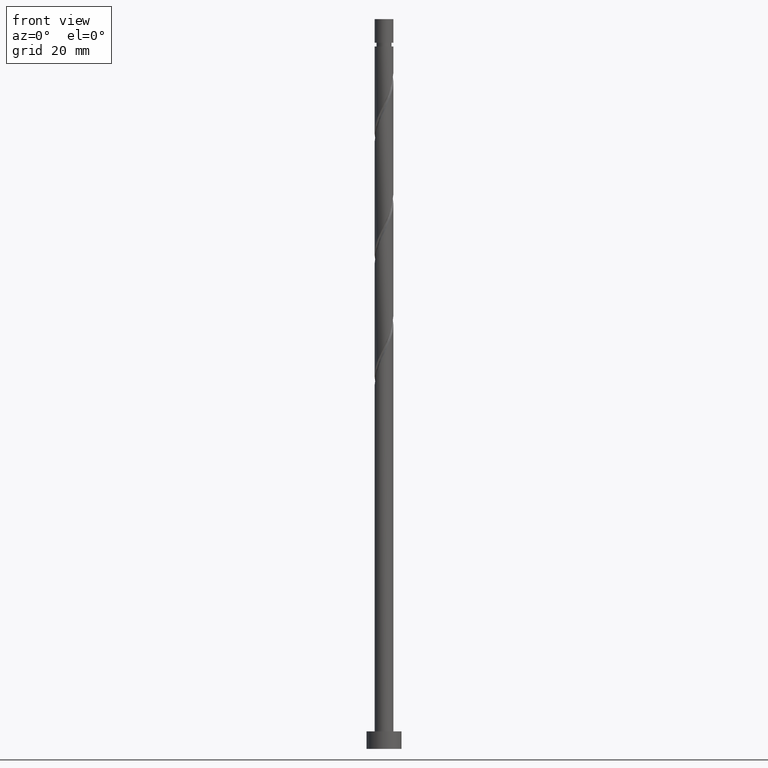
[diagram: clean part render]
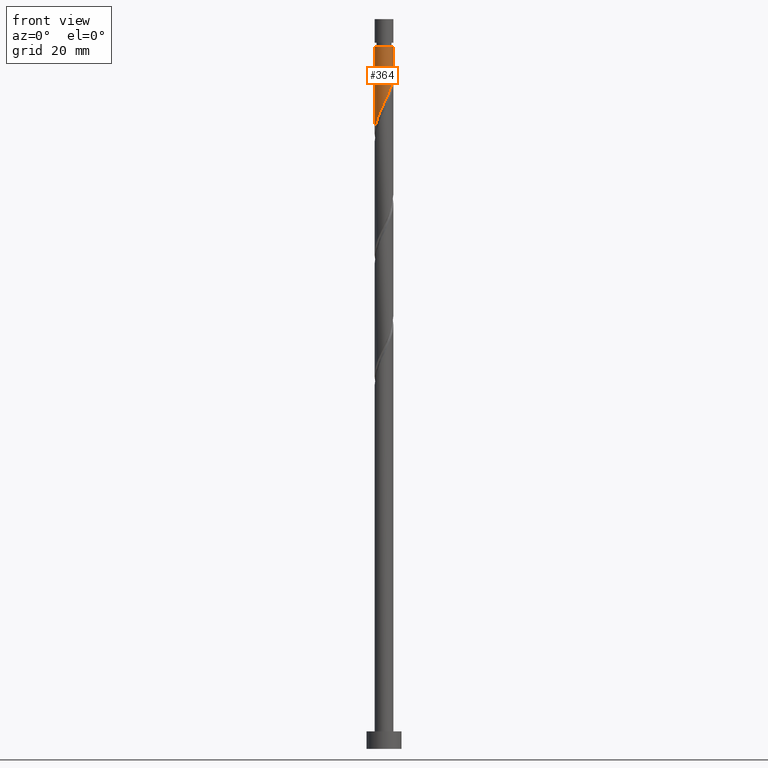
[diagram: same view with one face highlighted and labeled with its STEP entity id]
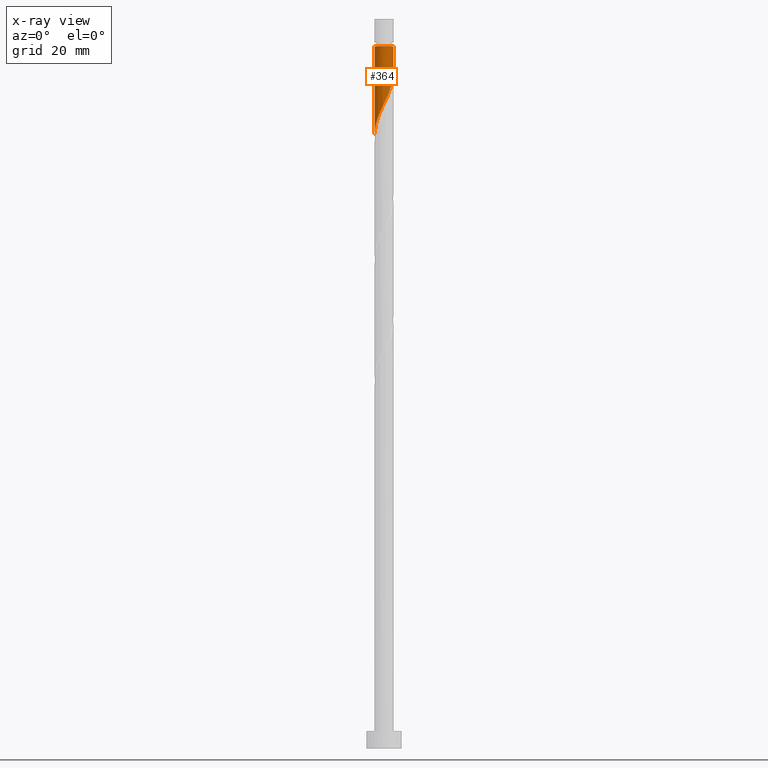
[diagram: x-ray of the same camera — body ghosted, the highlighted face saturated]
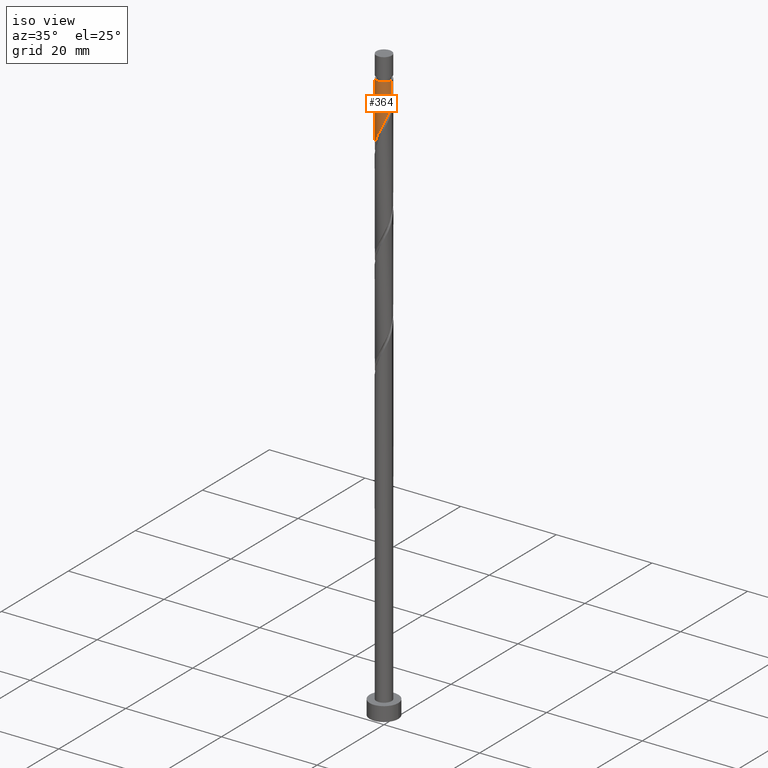
[diagram: same view with one face highlighted and labeled with its STEP entity id]
A machine part, front view. The second image highlights one B-rep face of the part: STEP entity #364.
The next image is the same camera in x-ray: the body ghosted, the highlighted face saturated — about 0% of this face is hidden behind the body in this view.
A second angle (iso view) of the same face is appended — the face is thin or edge-on in the first view.
In plain terms, the highlighted cylindrical surface (edge-blend (fillet) strip) has radius 1.6 mm, axis along (-0, -0, -1).
Its self-contained STEP definition (entity closure, byte-faithful):
#16 = LINE ( 'NONE', #279, #525 ) ;
#20 = CARTESIAN_POINT ( 'NONE',  ( 1.081390185820699346, -1.179235034253423242, 113.0289206029415396 ) ) ;
#127 = EDGE_CURVE ( 'NONE', #1108, #610, #16, .T. ) ;
#135 = CARTESIAN_POINT ( 'NONE',  ( -1.350510413607081128, -0.8946177049093851918, 107.2997539362748540 ) ) ;
#150 = CARTESIAN_POINT ( 'NONE',  ( 1.392866848829034110, -0.7873512186013789105, 114.0705872696081826 ) ) ;
#153 = ORIENTED_EDGE ( 'NONE', *, *, #127, .F. ) ;
#165 = CARTESIAN_POINT ( 'NONE',  ( 1.268162666732012944, -1.007959654899765578, 113.5497539362748540 ) ) ;
#210 = CYLINDRICAL_SURFACE ( 'NONE', #844, 1.600000000000000089 ) ;
#276 = CARTESIAN_POINT ( 'NONE',  ( 1.567999999999999838, -0.3183959798741187730, 115.1122539362748682 ) ) ;
#279 = CARTESIAN_POINT ( 'NONE',  ( 1.600000000000000089, 1.959434878635764737E-16, 125.0000000000000000 ) ) ;
#364 = ADVANCED_FACE ( 'NONE', ( #1533 ), #210, .T. ) ;
#383 = CARTESIAN_POINT ( 'NONE',  ( -0.7873512186013785774, -1.392866848829034110, 108.8622539362748540 ) ) ;
#391 =( BOUNDED_CURVE ( )  B_SPLINE_CURVE ( 2, ( #1230, #611, #276, #1486, #150, #165, #20, #999, #982, #1472, #504, #397, #1354, #1021, #383, #1251, #1498, #135, #508, #622, #417, #1480, #533 ),
 .UNSPECIFIED., .F., .T. ) 
 B_SPLINE_CURVE_WITH_KNOTS ( ( 3, 2, 2, 2, 2, 2, 2, 2, 2, 2, 2, 3 ),
 ( 0.3045322023138551937, 0.3125000000000000000, 0.3250000000000000111, 0.3375000000000000222, 0.3499999999999999778, 0.3624999999999999889, 0.3750000000000000000, 0.3875000000000000111, 0.4000000000000000222, 0.4124999999999999778, 0.4249999999999999889, 0.4295322023138550271 ),
 .UNSPECIFIED. ) 
 CURVE ( )  GEOMETRIC_REPRESENTATION_ITEM ( )  RATIONAL_B_SPLINE_CURVE ( ( 0.9039174447099370679, 0.9019565955404664770, 0.9090909090909147228, 0.8978984914501307868, 0.9090909090909147228, 0.8978984914501307868, 0.9090909090909147228, 0.8978984914501307868, 0.9090909090909147228, 0.8978984914501307868, 0.9090909090909147228, 0.8978984914501307868, 0.9090909090909147228, 0.8978984914501307868, 0.9090909090909147228, 0.8978984914501307868, 0.9090909090909147228, 0.8978984914501307868, 0.9090909090909147228, 0.8978984914501307868, 0.9090909090909147228, 0.9050328050005793656, 0.9039174447099371790 ) ) 
 REPRESENTATION_ITEM ( '' )  );
#397 = CARTESIAN_POINT ( 'NONE',  ( -0.07004917744524592760, -1.618428969073944179, 110.4247539362748682 ) ) ;
#417 = CARTESIAN_POINT ( 'NONE',  ( -1.589646386272566936, -0.1817260757584563402, 105.7372539362748682 ) ) ;
#427 = CIRCLE ( 'NONE', #1419, 1.599999999999997646 ) ;
#441 = CARTESIAN_POINT ( 'NONE',  ( 0.000000000000000000, 0.000000000000000000, 125.0000000000000000 ) ) ;
#473 = CARTESIAN_POINT ( 'NONE',  ( 1.600000000000000089, 8.021309989015088205E-16, 115.7770563777451258 ) ) ;
#483 = EDGE_CURVE ( 'NONE', #1108, #790, #427, .T. ) ;
#504 = CARTESIAN_POINT ( 'NONE',  ( 0.1817260757584562569, -1.589646386272566936, 110.9455872696082110 ) ) ;
#508 = CARTESIAN_POINT ( 'NONE',  ( -1.455687108539135632, -0.6640595169357719207, 106.7789206029415254 ) ) ;
#525 = VECTOR ( 'NONE', #1406, 1000.000000000000000 ) ;
#533 = CARTESIAN_POINT ( 'NONE',  ( -1.600000000000000089, -1.012034437866389592E-15, 105.3603897110784828 ) ) ;
#582 = CARTESIAN_POINT ( 'NONE',  ( -1.600000000000000089, 0.000000000000000000, 125.0000000000000000 ) ) ;
#610 = VERTEX_POINT ( 'NONE', #473 ) ;
#611 = CARTESIAN_POINT ( 'NONE',  ( 1.599999999999999645, -0.1608060504414748626, 115.4427518023372556 ) ) ;
#619 = ORIENTED_EDGE ( 'NONE', *, *, #752, .F. ) ;
#622 = CARTESIAN_POINT ( 'NONE',  ( -1.560863803471189470, -0.4335013289621584276, 106.2580872696081968 ) ) ;
#624 = CARTESIAN_POINT ( 'NONE',  ( -1.600000000000000089, -1.012034437866389592E-15, 105.3603897110784686 ) ) ;
#682 = EDGE_CURVE ( 'NONE', #790, #1483, #1180, .T. ) ;
#743 = VECTOR ( 'NONE', #1065, 1000.000000000000000 ) ;
#752 = EDGE_CURVE ( 'NONE', #610, #1483, #391, .T. ) ;
#790 = VERTEX_POINT ( 'NONE', #991 ) ;
#816 = CARTESIAN_POINT ( 'NONE',  ( 1.599999999999997646, 1.959434878635763258E-16, 120.3205872696081968 ) ) ;
#844 = AXIS2_PLACEMENT_3D ( 'NONE', #441, #1049, #1163 ) ;
#926 = CARTESIAN_POINT ( 'NONE',  ( 0.000000000000000000, 0.000000000000000000, 120.3205872696081968 ) ) ;
#955 = EDGE_LOOP ( 'NONE', ( #153, #1299, #1029, #619 ) ) ;
#982 = CARTESIAN_POINT ( 'NONE',  ( 0.6640595169357719207, -1.455687108539135632, 111.9872539362748398 ) ) ;
#991 = CARTESIAN_POINT ( 'NONE',  ( -1.599999999999997646, 0.000000000000000000, 120.3205872696081968 ) ) ;
#999 = CARTESIAN_POINT ( 'NONE',  ( 0.8946177049093851918, -1.350510413607081128, 112.5080872696081826 ) ) ;
#1021 = CARTESIAN_POINT ( 'NONE',  ( -0.5667427823029914657, -1.517571030926054609, 109.3830872696081826 ) ) ;
#1029 = ORIENTED_EDGE ( 'NONE', *, *, #682, .T. ) ;
#1049 = DIRECTION ( 'NONE',  ( -0.000000000000000000, -0.000000000000000000, -1.000000000000000000 ) ) ;
#1065 = DIRECTION ( 'NONE',  ( -0.000000000000000000, -0.000000000000000000, -1.000000000000000000 ) ) ;
#1108 = VERTEX_POINT ( 'NONE', #816 ) ;
#1163 = DIRECTION ( 'NONE',  ( -1.000000000000000000, 0.000000000000000000, 0.000000000000000000 ) ) ;
#1180 = LINE ( 'NONE', #582, #743 ) ;
#1230 = CARTESIAN_POINT ( 'NONE',  ( 1.599999999999999867, 8.021309989015088205E-16, 115.7770563777451258 ) ) ;
#1251 = CARTESIAN_POINT ( 'NONE',  ( -1.007959654899765578, -1.268162666732012944, 108.3414206029415254 ) ) ;
#1294 = DIRECTION ( 'NONE',  ( -1.000000000000000000, 0.000000000000000000, 0.000000000000000000 ) ) ;
#1299 = ORIENTED_EDGE ( 'NONE', *, *, #483, .T. ) ;
#1312 = DIRECTION ( 'NONE',  ( -0.000000000000000000, -0.000000000000000000, -1.000000000000000000 ) ) ;
#1354 = CARTESIAN_POINT ( 'NONE',  ( -0.3183959798741187175, -1.567999999999999838, 109.9039206029415396 ) ) ;
#1406 = DIRECTION ( 'NONE',  ( -0.000000000000000000, -0.000000000000000000, -1.000000000000000000 ) ) ;
#1419 = AXIS2_PLACEMENT_3D ( 'NONE', #926, #1312, #1294 ) ;
#1472 = CARTESIAN_POINT ( 'NONE',  ( 0.4335013289621582055, -1.560863803471189470, 111.4664206029415254 ) ) ;
#1480 = CARTESIAN_POINT ( 'NONE',  ( -1.599999999999999201, -0.09115797991429512581, 105.5499008002857408 ) ) ;
#1483 = VERTEX_POINT ( 'NONE', #624 ) ;
#1486 = CARTESIAN_POINT ( 'NONE',  ( 1.517571030926054609, -0.5667427823029915768, 114.5914206029415254 ) ) ;
#1498 = CARTESIAN_POINT ( 'NONE',  ( -1.179235034253423242, -1.081390185820699346, 107.8205872696081968 ) ) ;
#1533 = FACE_OUTER_BOUND ( 'NONE', #955, .T. ) ;